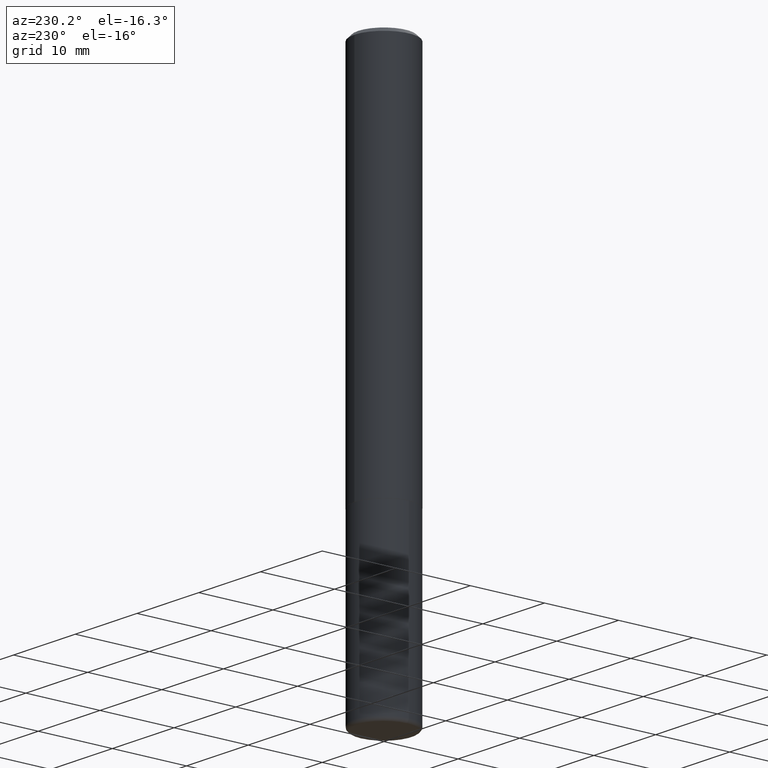
[diagram: clean part render]
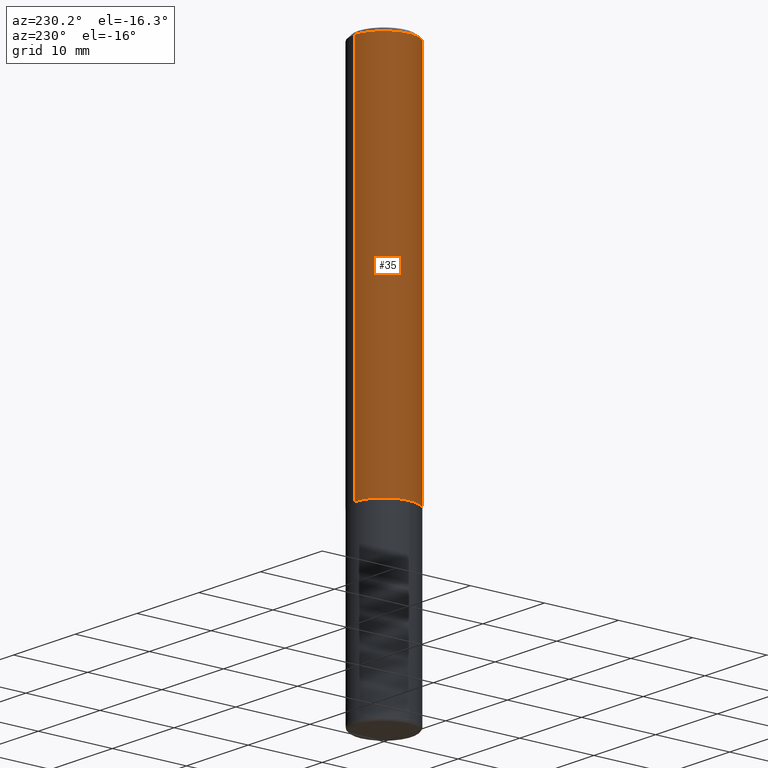
[diagram: same view with one face highlighted and labeled with its STEP entity id]
A machine part, auxiliary view. The second image highlights one B-rep face of the part: STEP entity #35.
In plain terms, the highlighted cylindrical surface (partial cylindrical patch) has radius 4.0005 mm, axis along (-0, 0, 1).
Its self-contained STEP definition (entity closure, byte-faithful):
#3 = LINE ( 'NONE', #181, #110 ) ;
#5 = EDGE_LOOP ( 'NONE', ( #158, #120, #314, #282 ) ) ;
#9 = DIRECTION ( 'NONE',  ( -6.982962677686264344E-15, -1.000000000000000000, 3.496114991891764787E-15 ) ) ;
#13 = CARTESIAN_POINT ( 'NONE',  ( 0.000000000000000000, 0.000000000000000000, 0.000000000000000000 ) ) ;
#26 = AXIS2_PLACEMENT_3D ( 'NONE', #252, #73, #9 ) ;
#30 = CARTESIAN_POINT ( 'NONE',  ( 1.099816621735587480E-15, 0.1574999999999999456, -0.02000000000000058328 ) ) ;
#35 = ADVANCED_FACE ( 'NONE', ( #286 ), #47, .T. ) ;
#47 = CYLINDRICAL_SURFACE ( 'NONE', #202, 0.1575000000000001399 ) ;
#68 = CARTESIAN_POINT ( 'NONE',  ( 1.119104808822183439E-15, 0.1574999999999932287, -2.006899999999999906 ) ) ;
#73 = DIRECTION ( 'NONE',  ( -2.444729828315544280E-29, 3.492539597212409932E-15, 1.000000000000000000 ) ) ;
#86 = VECTOR ( 'NONE', #291, 39.37007874015748143 ) ;
#100 = AXIS2_PLACEMENT_3D ( 'NONE', #327, #294, #397 ) ;
#110 = VECTOR ( 'NONE', #321, 39.37007874015748143 ) ;
#120 = ORIENTED_EDGE ( 'NONE', *, *, #300, .T. ) ;
#121 = CARTESIAN_POINT ( 'NONE',  ( -1.080528434649015779E-15, -0.1575000000000000844, -0.01999999999999948347 ) ) ;
#128 = CARTESIAN_POINT ( 'NONE',  ( -1.099816621735539360E-15, -0.1575000000000072453, -2.006899999999999018 ) ) ;
#151 = VERTEX_POINT ( 'NONE', #121 ) ;
#152 = VERTEX_POINT ( 'NONE', #30 ) ;
#158 = ORIENTED_EDGE ( 'NONE', *, *, #186, .F. ) ;
#181 = CARTESIAN_POINT ( 'NONE',  ( 1.119104808822158392E-15, 0.1575000000000001399, -5.500749865609550376E-16 ) ) ;
#186 = EDGE_CURVE ( 'NONE', #234, #152, #3, .T. ) ;
#194 = CARTESIAN_POINT ( 'NONE',  ( -1.099816621735587677E-15, -0.1575000000000001399, 5.500749865609550376E-16 ) ) ;
#197 = DIRECTION ( 'NONE',  ( -6.982962677686265133E-15, -1.000000000000000000, 3.492539597212409932E-15 ) ) ;
#202 = AXIS2_PLACEMENT_3D ( 'NONE', #13, #231, #197 ) ;
#217 = VERTEX_POINT ( 'NONE', #128 ) ;
#231 = DIRECTION ( 'NONE',  ( -2.444729828315544280E-29, 3.492539597212409932E-15, 1.000000000000000000 ) ) ;
#234 = VERTEX_POINT ( 'NONE', #68 ) ;
#252 = CARTESIAN_POINT ( 'NONE',  ( 4.889459656631096617E-31, -6.985079194424830218E-17, -0.02000000000000003511 ) ) ;
#282 = ORIENTED_EDGE ( 'NONE', *, *, #377, .F. ) ;
#286 = FACE_OUTER_BOUND ( 'NONE', #5, .T. ) ;
#291 = DIRECTION ( 'NONE',  ( -2.444729828315544280E-29, 3.492539597212410327E-15, 1.000000000000000000 ) ) ;
#294 = DIRECTION ( 'NONE',  ( -2.444729828315544280E-29, 3.492539597212409932E-15, 1.000000000000000000 ) ) ;
#300 = EDGE_CURVE ( 'NONE', #234, #217, #416, .T. ) ;
#314 = ORIENTED_EDGE ( 'NONE', *, *, #398, .T. ) ;
#321 = DIRECTION ( 'NONE',  ( -2.444729828315544280E-29, 3.492539597212410327E-15, 1.000000000000000000 ) ) ;
#327 = CARTESIAN_POINT ( 'NONE',  ( 4.906328292446464760E-29, -7.009177717645583542E-15, -2.006899999999999462 ) ) ;
#337 = CIRCLE ( 'NONE', #26, 0.1575000000000000289 ) ;
#365 = LINE ( 'NONE', #194, #86 ) ;
#377 = EDGE_CURVE ( 'NONE', #152, #151, #337, .T. ) ;
#397 = DIRECTION ( 'NONE',  ( -6.982962677686265922E-15, -1.000000000000000000, 3.469013325287948560E-15 ) ) ;
#398 = EDGE_CURVE ( 'NONE', #217, #151, #365, .T. ) ;
#416 = CIRCLE ( 'NONE', #100, 0.1575000000000002232 ) ;